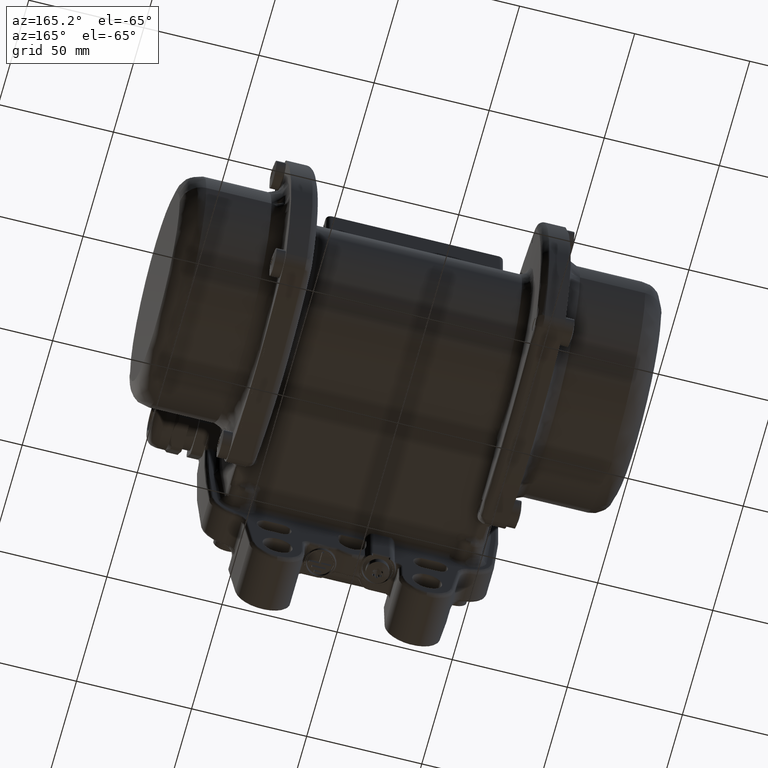
[diagram: clean part render]
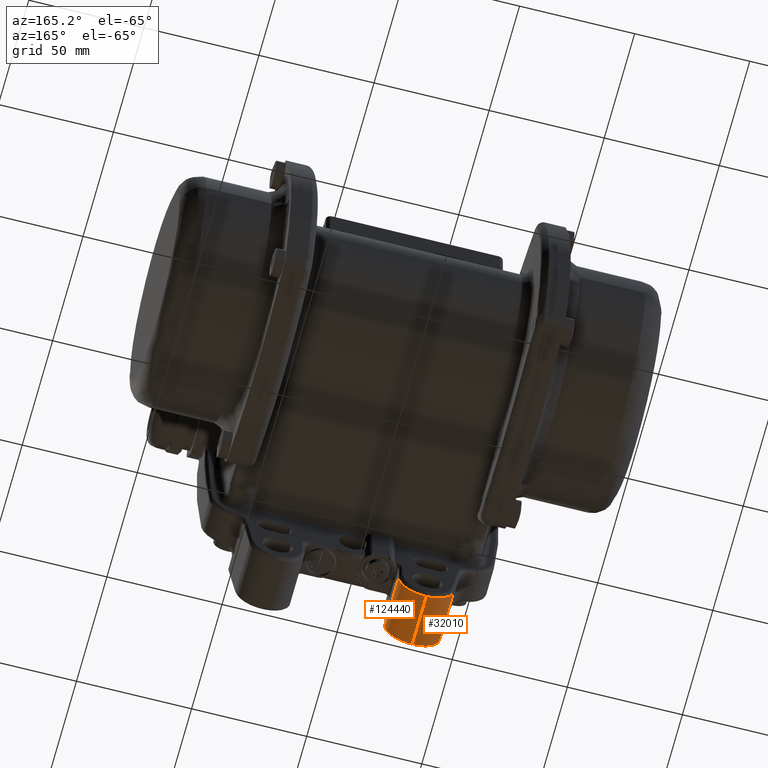
[diagram: same view with one multi-face feature highlighted, each face labeled with its STEP entity id]
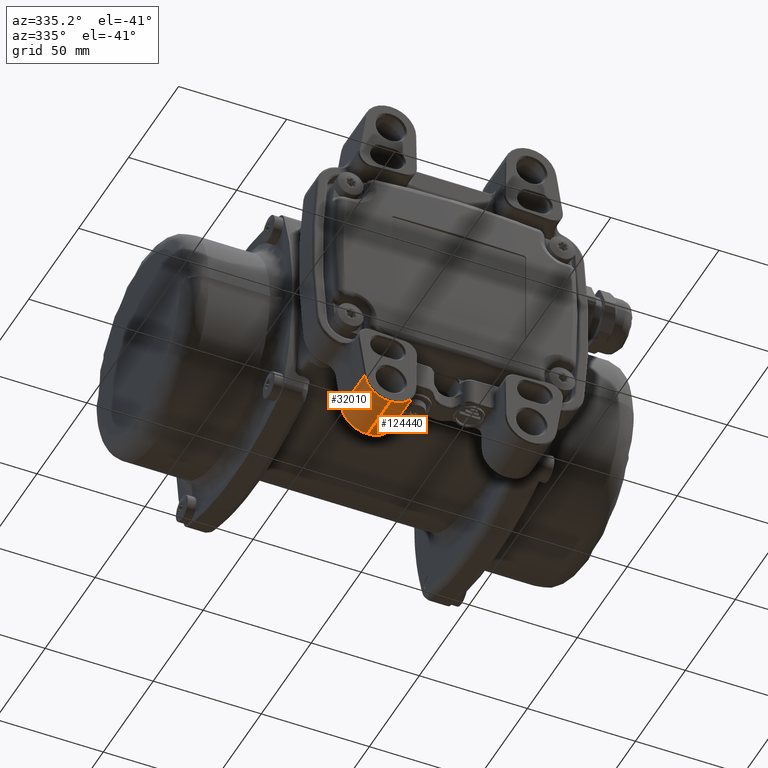
[diagram: same view with one multi-face feature highlighted, each face labeled with its STEP entity id]
A machine part, auxiliary view. The highlighted faces form ONE feature: a constant-radius fillet chain: 2 tangent blend faces with common blend radius 12 mm. The faces share edges in the B-rep.
A second angle (auxiliary view) of the same feature is appended — it is thin or edge-on in the first view.
Their STEP definitions:
[1] entity #124440 (Cylinder):
#246 = EDGE_CURVE ( 'NONE', #37679, #99166, #24057, .T. ) ;
#2264 = EDGE_CURVE ( 'NONE', #37679, #137676, #103947, .T. ) ;
#4175 = CARTESIAN_POINT ( 'NONE',  ( -20.50182765812334700, 25.00000000000000000, -70.20942887724730500 ) ) ;
#7397 = ORIENTED_EDGE ( 'NONE', *, *, #12712, .F. ) ;
#12712 = EDGE_CURVE ( 'NONE', #99166, #110495, #63774, .T. ) ;
#22530 = ORIENTED_EDGE ( 'NONE', *, *, #246, .F. ) ;
#23775 = VECTOR ( 'NONE', #99046, 1000.000000000000000 ) ;
#24021 = EDGE_CURVE ( 'NONE', #137676, #110495, #131581, .T. ) ;
#24057 = CIRCLE ( 'NONE', #152469, 11.99999999999999600 ) ;
#32135 = VECTOR ( 'NONE', #32376, 1000.000000000000000 ) ;
#32376 = DIRECTION ( 'NONE',  ( -9.992007221626410800E-016, -1.000000000000000000, 3.356031614387180000E-016 ) ) ;
#36153 = DIRECTION ( 'NONE',  ( 1.734723475976807700E-015, 2.891205793294679300E-016, -1.000000000000000000 ) ) ;
#37679 = VERTEX_POINT ( 'NONE', #85969 ) ;
#57656 = DIRECTION ( 'NONE',  ( 1.734723475976807700E-015, 3.614007241618349300E-016, -1.000000000000000000 ) ) ;
#59220 = DIRECTION ( 'NONE',  ( 9.992007221626410800E-016, 1.000000000000000000, -3.356031614387180000E-016 ) ) ;
#63774 = LINE ( 'NONE', #148739, #32135 ) ;
#66355 = FACE_OUTER_BOUND ( 'NONE', #91935, .T. ) ;
#68167 = ORIENTED_EDGE ( 'NONE', *, *, #2264, .T. ) ;
#69547 = CARTESIAN_POINT ( 'NONE',  ( -32.50000000000000000, 25.00000000000000000, -70.00000000000000000 ) ) ;
#71954 = AXIS2_PLACEMENT_3D ( 'NONE', #154189, #59220, #57656 ) ;
#73880 = CYLINDRICAL_SURFACE ( 'NONE', #154373, 11.99999999999999600 ) ;
#81590 = DIRECTION ( 'NONE',  ( -9.992007221626410800E-016, -1.000000000000000000, 3.356031614387180000E-016 ) ) ;
#85969 = CARTESIAN_POINT ( 'NONE',  ( -20.50182765812334700, 23.50000000000000000, -70.20942887724740400 ) ) ;
#91935 = EDGE_LOOP ( 'NONE', ( #7397, #22530, #68167, #114821 ) ) ;
#96057 = DIRECTION ( 'NONE',  ( 9.992007221626410800E-016, 1.000000000000000000, -3.356031614387180000E-016 ) ) ;
#99046 = DIRECTION ( 'NONE',  ( -9.992007221626410800E-016, -1.000000000000000000, 3.356031614387180000E-016 ) ) ;
#99166 = VERTEX_POINT ( 'NONE', #116057 ) ;
#103947 = LINE ( 'NONE', #4175, #23775 ) ;
#110495 = VERTEX_POINT ( 'NONE', #120017 ) ;
#114821 = ORIENTED_EDGE ( 'NONE', *, *, #24021, .T. ) ;
#116057 = CARTESIAN_POINT ( 'NONE',  ( -32.50000000000000000, 23.49999999999999600, -82.00000000000000000 ) ) ;
#119977 = CARTESIAN_POINT ( 'NONE',  ( -20.50182772771105300, 0.4999999999986960400, -70.20943286384509500 ) ) ;
#120017 = CARTESIAN_POINT ( 'NONE',  ( -32.50000000000002800, 0.5000000000000245400, -81.99999999999998600 ) ) ;
#124440 = ADVANCED_FACE ( 'NONE', ( #66355 ), #73880, .T. ) ;
#130569 = CARTESIAN_POINT ( 'NONE',  ( -32.50000000000000000, 23.50000000000000000, -70.00000000000000000 ) ) ;
#131581 = CIRCLE ( 'NONE', #71954, 11.99999999999999600 ) ;
#132166 = DIRECTION ( 'NONE',  ( 0.0000000000000000000, 2.891205793294679300E-016, -1.000000000000000000 ) ) ;
#137676 = VERTEX_POINT ( 'NONE', #119977 ) ;
#148739 = CARTESIAN_POINT ( 'NONE',  ( -32.50000000000000000, 25.00000000000000400, -82.00000000000000000 ) ) ;
#152469 = AXIS2_PLACEMENT_3D ( 'NONE', #130569, #96057, #36153 ) ;
#154189 = CARTESIAN_POINT ( 'NONE',  ( -32.50000000000000000, 0.5000000000000279800, -70.00000000000000000 ) ) ;
#154373 = AXIS2_PLACEMENT_3D ( 'NONE', #69547, #81590, #132166 ) ;
[2] entity #32010 (Cylinder):
#12712 = EDGE_CURVE ( 'NONE', #99166, #110495, #63774, .T. ) ;
#14639 = DIRECTION ( 'NONE',  ( 0.0000000000000000000, 2.891205793294679300E-016, -1.000000000000000000 ) ) ;
#25602 = EDGE_LOOP ( 'NONE', ( #39864, #116969, #114923, #119536 ) ) ;
#31025 = DIRECTION ( 'NONE',  ( 9.992007221626410800E-016, 1.000000000000000000, -3.356031614387180000E-016 ) ) ;
#32010 = ADVANCED_FACE ( 'NONE', ( #35300 ), #53932, .T. ) ;
#32135 = VECTOR ( 'NONE', #32376, 1000.000000000000000 ) ;
#32376 = DIRECTION ( 'NONE',  ( -9.992007221626410800E-016, -1.000000000000000000, 3.356031614387180000E-016 ) ) ;
#35300 = FACE_OUTER_BOUND ( 'NONE', #25602, .T. ) ;
#39864 = ORIENTED_EDGE ( 'NONE', *, *, #94967, .F. ) ;
#47441 = VERTEX_POINT ( 'NONE', #51991 ) ;
#51134 = DIRECTION ( 'NONE',  ( 9.992007221626410800E-016, 1.000000000000000000, -3.356031614387180000E-016 ) ) ;
#51991 = CARTESIAN_POINT ( 'NONE',  ( -44.36819036034310000, 0.5000000000000279800, -71.77371293355528800 ) ) ;
#53932 = CYLINDRICAL_SURFACE ( 'NONE', #119759, 11.99999999999999600 ) ;
#61318 = CARTESIAN_POINT ( 'NONE',  ( -32.50000000000000000, 25.00000000000000000, -70.00000000000000000 ) ) ;
#63774 = LINE ( 'NONE', #148739, #32135 ) ;
#64581 = CARTESIAN_POINT ( 'NONE',  ( -44.36819036034310000, 23.50000000000000000, -71.77371293355538700 ) ) ;
#65897 = CARTESIAN_POINT ( 'NONE',  ( -44.36819036034310000, 25.00000000000000000, -71.77371293355528800 ) ) ;
#70743 = DIRECTION ( 'NONE',  ( 0.0000000000000000000, 3.614007241618349300E-016, -1.000000000000000000 ) ) ;
#74669 = VECTOR ( 'NONE', #31025, 1000.000000000000000 ) ;
#75324 = EDGE_CURVE ( 'NONE', #110495, #47441, #105976, .T. ) ;
#83806 = DIRECTION ( 'NONE',  ( 9.992007221626410800E-016, 1.000000000000000000, -3.356031614387180000E-016 ) ) ;
#84283 = DIRECTION ( 'NONE',  ( -9.992007221626410800E-016, -1.000000000000000000, 3.356031614387180000E-016 ) ) ;
#94967 = EDGE_CURVE ( 'NONE', #99166, #126380, #126217, .T. ) ;
#99166 = VERTEX_POINT ( 'NONE', #116057 ) ;
#105976 = CIRCLE ( 'NONE', #131915, 11.99999999999999600 ) ;
#106746 = DIRECTION ( 'NONE',  ( 0.0000000000000000000, 2.891205793294679300E-016, -1.000000000000000000 ) ) ;
#110495 = VERTEX_POINT ( 'NONE', #120017 ) ;
#114923 = ORIENTED_EDGE ( 'NONE', *, *, #75324, .T. ) ;
#116057 = CARTESIAN_POINT ( 'NONE',  ( -32.50000000000000000, 23.49999999999999600, -82.00000000000000000 ) ) ;
#116969 = ORIENTED_EDGE ( 'NONE', *, *, #12712, .T. ) ;
#119536 = ORIENTED_EDGE ( 'NONE', *, *, #140963, .T. ) ;
#119759 = AXIS2_PLACEMENT_3D ( 'NONE', #61318, #84283, #106746 ) ;
#120017 = CARTESIAN_POINT ( 'NONE',  ( -32.50000000000002800, 0.5000000000000245400, -81.99999999999998600 ) ) ;
#124627 = AXIS2_PLACEMENT_3D ( 'NONE', #135143, #51134, #14639 ) ;
#126217 = CIRCLE ( 'NONE', #124627, 11.99999999999999600 ) ;
#126380 = VERTEX_POINT ( 'NONE', #64581 ) ;
#128761 = LINE ( 'NONE', #65897, #74669 ) ;
#131915 = AXIS2_PLACEMENT_3D ( 'NONE', #142857, #83806, #70743 ) ;
#135143 = CARTESIAN_POINT ( 'NONE',  ( -32.50000000000000000, 23.50000000000000000, -70.00000000000000000 ) ) ;
#140963 = EDGE_CURVE ( 'NONE', #47441, #126380, #128761, .T. ) ;
#142857 = CARTESIAN_POINT ( 'NONE',  ( -32.50000000000000000, 0.5000000000000279800, -70.00000000000000000 ) ) ;
#148739 = CARTESIAN_POINT ( 'NONE',  ( -32.50000000000000000, 25.00000000000000400, -82.00000000000000000 ) ) ;